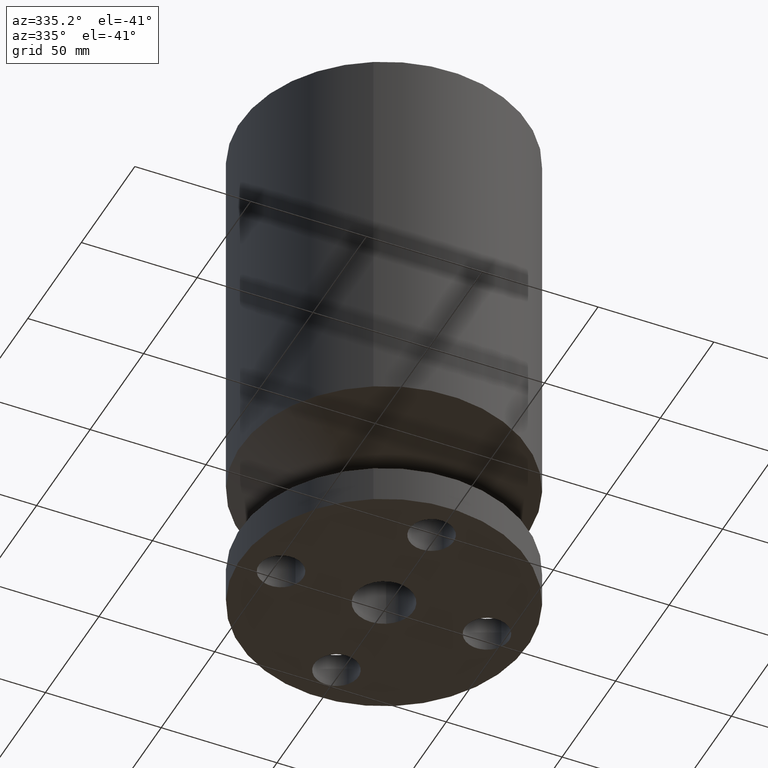
[diagram: clean part render]
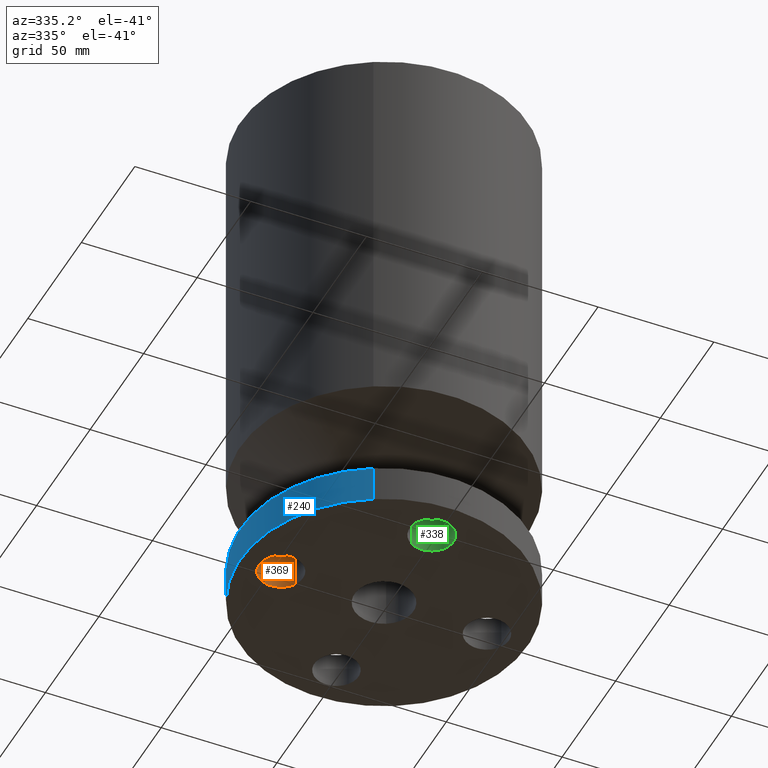
[diagram: same view with three faces highlighted in distinct colors, each labeled with its STEP entity id]
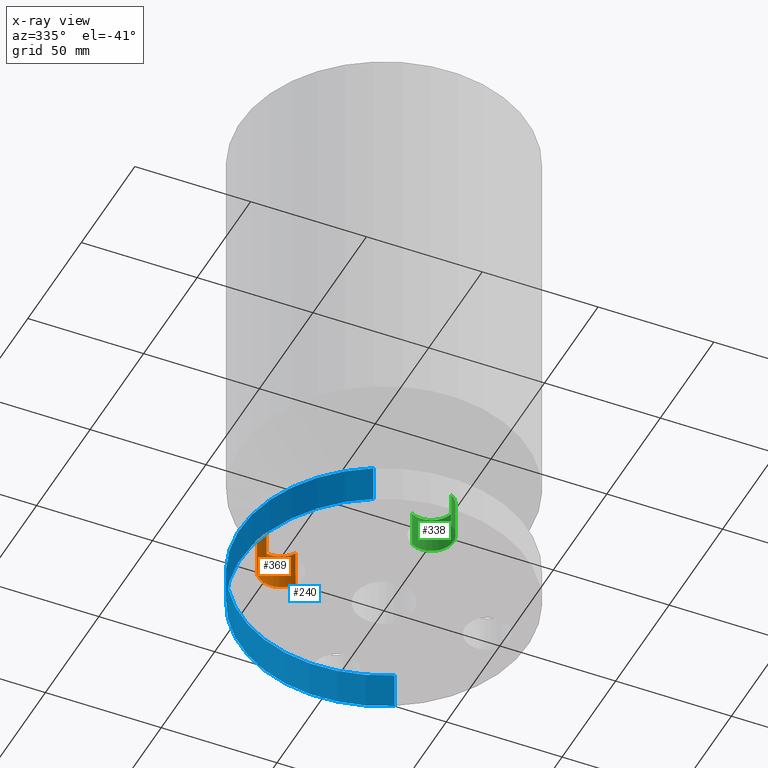
[diagram: x-ray of the same camera — body ghosted, the three highlighted faces saturated]
A machine part, auxiliary view with three faces highlighted in distinct colors.
The next image is the same camera in x-ray (body ghosted, the three faces saturated) — at least one of them is partly hidden behind the body in this view.
Their STEP definitions:

[orange] entity #369 — the highlighted cylindrical surface (edge-blend (fillet) strip) has radius 9.525 mm, axis along (0, 0, 1).
#154=AXIS2_PLACEMENT_3D('Circle Axis2P3D',#152,#153,$) ;
#342=AXIS2_PLACEMENT_3D('Cylinder Axis2P3D',#339,#340,#341) ;
#353=AXIS2_PLACEMENT_3D('Circle Axis2P3D',#351,#352,$) ;
#147=CARTESIAN_POINT('Vertex',(-1.4209065393,0.179784576977,0.627500000003)) ;
#149=CARTESIAN_POINT('Vertex',(-2.07909346072,-0.179784576977,0.627500000003)) ;
#152=CARTESIAN_POINT('Axis2P3D Location',(-1.75000000001,-2.79741234551E-016,0.627500000003)) ;
#339=CARTESIAN_POINT('Axis2P3D Location',(-1.75000000001,-2.14313189852E-016,0.00393700787402)) ;
#344=CARTESIAN_POINT('Line Origine',(-2.07909346072,-0.179784576977,0.313750000001)) ;
#348=CARTESIAN_POINT('Vertex',(-2.07909346072,-0.179784576977,2.2401153548E-016)) ;
#351=CARTESIAN_POINT('Axis2P3D Location',(-1.75000000001,-2.14313189852E-016,0.)) ;
#355=CARTESIAN_POINT('Vertex',(-1.4209065393,0.179784576977,2.2401153548E-016)) ;
#358=CARTESIAN_POINT('Line Origine',(-1.4209065393,0.179784576977,0.313750000001)) ;
#153=DIRECTION('Axis2P3D Direction',(0.,0.,-0.0393700787402)) ;
#340=DIRECTION('Axis2P3D Direction',(0.,0.,0.0393700787402)) ;
#341=DIRECTION('Axis2P3D XDirection',(-0.0345504945626,-0.0188750212049,0.)) ;
#345=DIRECTION('Vector Direction',(0.,0.,0.0393700787402)) ;
#352=DIRECTION('Axis2P3D Direction',(0.,0.,0.0393700787402)) ;
#359=DIRECTION('Vector Direction',(0.,0.,0.0393700787402)) ;
#346=VECTOR('Line Direction',#345,0.0393700787402) ;
#360=VECTOR('Line Direction',#359,0.0393700787402) ;
#364=ORIENTED_EDGE('',*,*,#350,.T.) ;
#365=ORIENTED_EDGE('',*,*,#357,.T.) ;
#366=ORIENTED_EDGE('',*,*,#362,.F.) ;
#367=ORIENTED_EDGE('',*,*,#156,.F.) ;
#369=ADVANCED_FACE('PartBody',(#368),#343,.F.) ;
#155=CIRCLE('generated circle',#154,0.375000000002) ;
#354=CIRCLE('generated circle',#353,0.375000000002) ;
#343=CYLINDRICAL_SURFACE('generated cylinder',#342,0.375000000002) ;
#156=EDGE_CURVE('',#150,#148,#155,.T.) ;
#350=EDGE_CURVE('',#150,#349,#347,.F.) ;
#357=EDGE_CURVE('',#349,#356,#354,.F.) ;
#362=EDGE_CURVE('',#148,#356,#361,.F.) ;
#363=EDGE_LOOP('',(#364,#365,#366,#367)) ;
#368=FACE_OUTER_BOUND('',#363,.T.) ;
#347=LINE('Line',#344,#346) ;
#361=LINE('Line',#358,#360) ;
#148=VERTEX_POINT('',#147) ;
#150=VERTEX_POINT('',#149) ;
#349=VERTEX_POINT('',#348) ;
#356=VERTEX_POINT('',#355) ;

[blue] entity #240 — the highlighted cylindrical surface (partial cylindrical patch) has radius 61.976 mm, axis along (0, 0, -1).
#91=AXIS2_PLACEMENT_3D('Circle Axis2P3D',#89,#90,$) ;
#213=AXIS2_PLACEMENT_3D('Cylinder Axis2P3D',#210,#211,#212) ;
#217=AXIS2_PLACEMENT_3D('Circle Axis2P3D',#215,#216,$) ;
#84=CARTESIAN_POINT('Vertex',(1.1697983142,2.14130145102,0.627500000003)) ;
#86=CARTESIAN_POINT('Vertex',(-1.1697983142,-2.14130145102,0.627500000003)) ;
#89=CARTESIAN_POINT('Axis2P3D Location',(0.,0.,0.627500000003)) ;
#210=CARTESIAN_POINT('Axis2P3D Location',(0.,0.,4.43750000002)) ;
#215=CARTESIAN_POINT('Axis2P3D Location',(0.,0.,5.59482469102E-016)) ;
#219=CARTESIAN_POINT('Vertex',(-1.1697983142,-2.14130145102,0.)) ;
#221=CARTESIAN_POINT('Vertex',(1.1697983142,2.14130145102,0.)) ;
#224=CARTESIAN_POINT('Line Origine',(-1.1697983142,-2.14130145102,5.62087168576)) ;
#229=CARTESIAN_POINT('Line Origine',(1.1697983142,2.14130145102,5.62087168576)) ;
#90=DIRECTION('Axis2P3D Direction',(0.,0.,-0.0393700787402)) ;
#211=DIRECTION('Axis2P3D Direction',(0.,0.,-0.0393700787402)) ;
#212=DIRECTION('Axis2P3D XDirection',(-0.0188750212049,-0.0345504945626,0.)) ;
#216=DIRECTION('Axis2P3D Direction',(0.,0.,-0.0393700787402)) ;
#225=DIRECTION('Vector Direction',(0.,0.,-0.0393700787402)) ;
#230=DIRECTION('Vector Direction',(0.,0.,-0.0393700787402)) ;
#226=VECTOR('Line Direction',#225,0.0393700787402) ;
#231=VECTOR('Line Direction',#230,0.0393700787402) ;
#235=ORIENTED_EDGE('',*,*,#223,.F.) ;
#236=ORIENTED_EDGE('',*,*,#228,.T.) ;
#237=ORIENTED_EDGE('',*,*,#93,.T.) ;
#238=ORIENTED_EDGE('',*,*,#233,.F.) ;
#240=ADVANCED_FACE('PartBody',(#239),#214,.T.) ;
#92=CIRCLE('generated circle',#91,2.44000000001) ;
#218=CIRCLE('generated circle',#217,2.44000000001) ;
#214=CYLINDRICAL_SURFACE('generated cylinder',#213,2.44000000001) ;
#93=EDGE_CURVE('',#87,#85,#92,.T.) ;
#223=EDGE_CURVE('',#220,#222,#218,.T.) ;
#228=EDGE_CURVE('',#220,#87,#227,.F.) ;
#233=EDGE_CURVE('',#222,#85,#232,.F.) ;
#234=EDGE_LOOP('',(#235,#236,#237,#238)) ;
#239=FACE_OUTER_BOUND('',#234,.T.) ;
#227=LINE('Line',#224,#226) ;
#232=LINE('Line',#229,#231) ;
#85=VERTEX_POINT('',#84) ;
#87=VERTEX_POINT('',#86) ;
#220=VERTEX_POINT('',#219) ;
#222=VERTEX_POINT('',#221) ;

[green] entity #338 — the highlighted cylindrical surface (edge-blend (fillet) strip) has radius 9.525 mm, axis along (-0, 0, 1).
#127=AXIS2_PLACEMENT_3D('Circle Axis2P3D',#125,#126,$) ;
#299=AXIS2_PLACEMENT_3D('Cylinder Axis2P3D',#296,#297,#298) ;
#329=AXIS2_PLACEMENT_3D('Circle Axis2P3D',#327,#328,$) ;
#125=CARTESIAN_POINT('Axis2P3D Location',(2.79741234551E-016,-1.75000000001,0.627500000003)) ;
#129=CARTESIAN_POINT('Vertex',(-0.179784576977,-1.4209065393,0.627500000003)) ;
#131=CARTESIAN_POINT('Vertex',(0.179784576977,-2.07909346072,0.627500000003)) ;
#296=CARTESIAN_POINT('Axis2P3D Location',(1.07156594926E-016,-1.75000000001,0.00393700787402)) ;
#301=CARTESIAN_POINT('Line Origine',(0.179784576977,-2.07909346072,0.313750000001)) ;
#305=CARTESIAN_POINT('Vertex',(0.179784576977,-2.07909346072,2.2401153548E-016)) ;
#312=CARTESIAN_POINT('Vertex',(-0.179784576977,-1.4209065393,2.2401153548E-016)) ;
#315=CARTESIAN_POINT('Line Origine',(-0.179784576977,-1.4209065393,0.313750000001)) ;
#327=CARTESIAN_POINT('Axis2P3D Location',(1.07156594926E-016,-1.75000000001,0.)) ;
#126=DIRECTION('Axis2P3D Direction',(0.,0.,-0.0393700787402)) ;
#297=DIRECTION('Axis2P3D Direction',(-0.,0.,0.0393700787402)) ;
#298=DIRECTION('Axis2P3D XDirection',(0.0188750212049,-0.0345504945626,0.)) ;
#302=DIRECTION('Vector Direction',(0.,0.,0.0393700787402)) ;
#316=DIRECTION('Vector Direction',(0.,0.,0.0393700787402)) ;
#328=DIRECTION('Axis2P3D Direction',(-0.,0.,0.0393700787402)) ;
#303=VECTOR('Line Direction',#302,0.0393700787402) ;
#317=VECTOR('Line Direction',#316,0.0393700787402) ;
#333=ORIENTED_EDGE('',*,*,#319,.T.) ;
#334=ORIENTED_EDGE('',*,*,#331,.T.) ;
#335=ORIENTED_EDGE('',*,*,#307,.F.) ;
#336=ORIENTED_EDGE('',*,*,#133,.F.) ;
#338=ADVANCED_FACE('PartBody',(#337),#300,.F.) ;
#128=CIRCLE('generated circle',#127,0.375000000001) ;
#330=CIRCLE('generated circle',#329,0.375000000001) ;
#300=CYLINDRICAL_SURFACE('generated cylinder',#299,0.375000000001) ;
#133=EDGE_CURVE('',#130,#132,#128,.T.) ;
#307=EDGE_CURVE('',#132,#306,#304,.F.) ;
#319=EDGE_CURVE('',#130,#313,#318,.F.) ;
#331=EDGE_CURVE('',#313,#306,#330,.F.) ;
#332=EDGE_LOOP('',(#333,#334,#335,#336)) ;
#337=FACE_OUTER_BOUND('',#332,.T.) ;
#304=LINE('Line',#301,#303) ;
#318=LINE('Line',#315,#317) ;
#130=VERTEX_POINT('',#129) ;
#132=VERTEX_POINT('',#131) ;
#306=VERTEX_POINT('',#305) ;
#313=VERTEX_POINT('',#312) ;